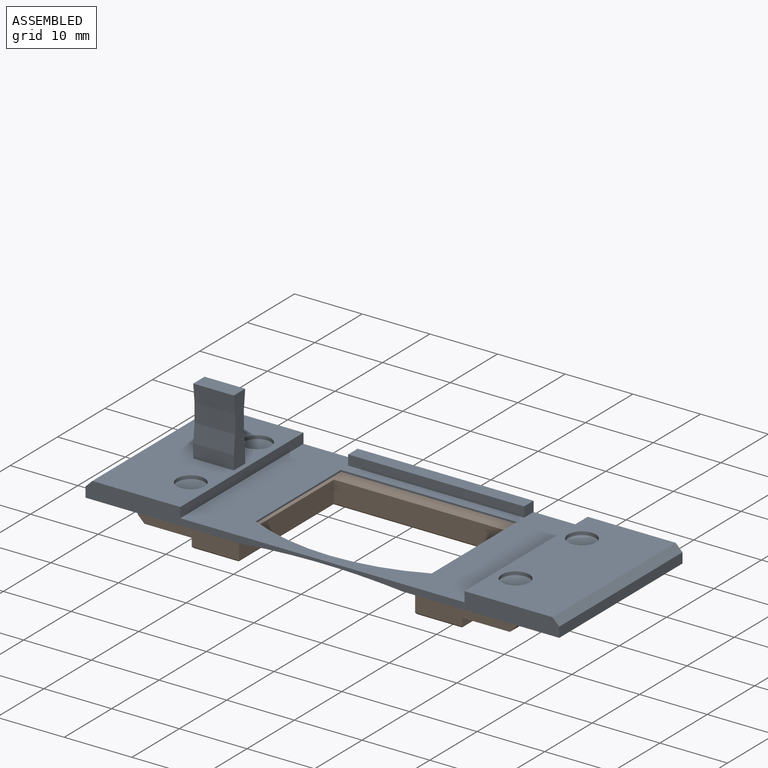
[diagram: assembled view]
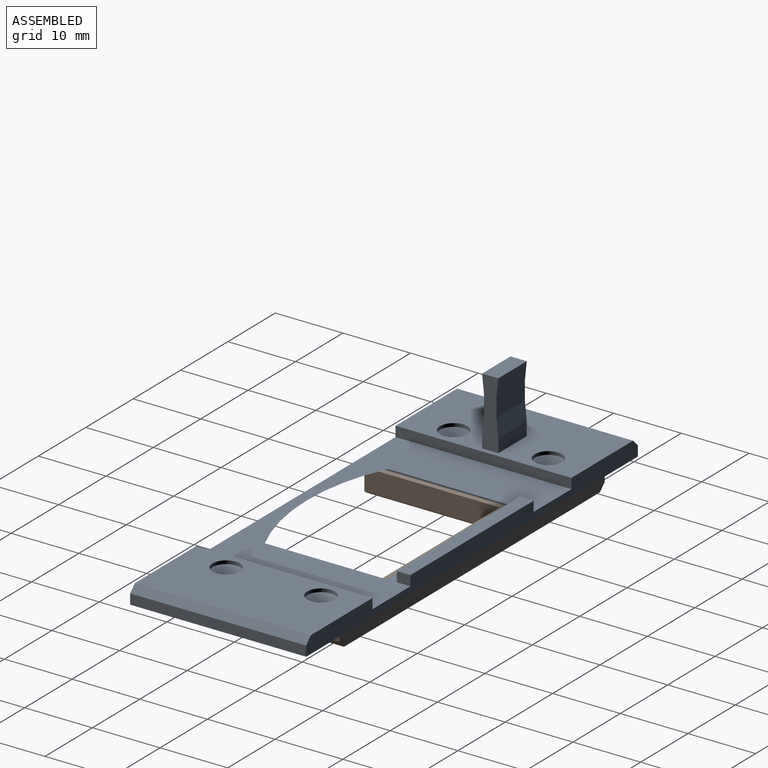
[diagram: assembled view, second angle]
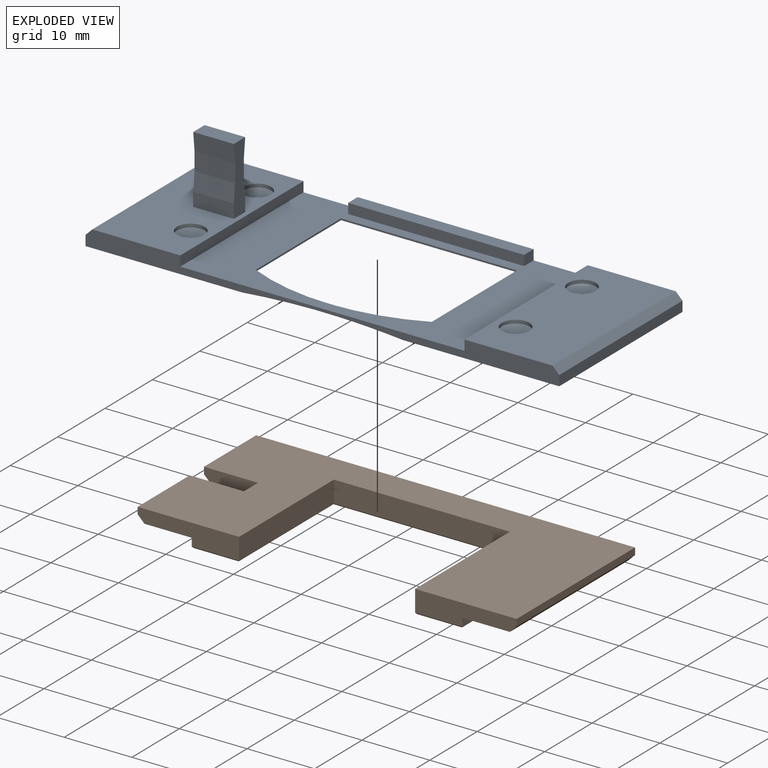
[diagram: exploded view]
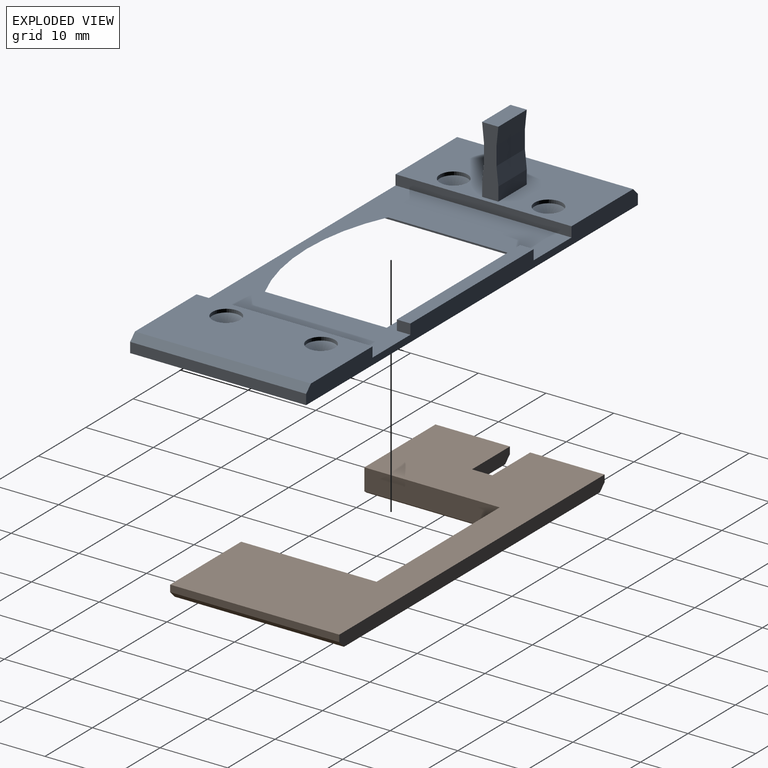
[diagram: exploded view, second angle]
ASSEMBLY  parts=2 mates=2
PART A: 38 faces, bbox 70x28.2x12.5 mm
  f0: plane 26x1.5mm, normal (0,-1,0), area 39mm2, adj f1,f15,f35,f36
  f1: plane 26x2mm, normal (0,0,1), area 52mm2, adj f0,f3,f35,f36
  f2: plane 26x13mm, normal (0,0,1), area 311.6mm2, adj f3,f8,f21,f23,f24,f34
  f3: plane 70x2.5mm, normal (0,1,0), area 150mm2, adj f1,f2,f4,f7,f8,f9,f10,f11
  f4: plane 70x26mm, normal (0,0,-1), area 1084.3mm2, adj f3,f9,f10,f31,f32,f33,f34,f37
  f5: plane 10x2.4mm, normal (1,0,0), area 20.7mm2, adj f11,f26,f27,f28,f29,f30
  f6: plane 10x2.4mm, normal (-1,0,0), area 20.7mm2, adj f11,f26,f27,f28,f29,f30
  f7: plane 26x1.5mm, normal (1,0,0), area 39mm2, adj f3,f11,f15,f34
  f8: plane 26x1.5mm, normal (-1,0,0), area 39mm2, adj f2,f3,f15,f34
  f9: plane 26x1.5mm, normal (1,0,0), area 39mm2, adj f3,f4,f24,f34
  f10: plane 26x1.5mm, normal (-1,0,0), area 39mm2, adj f3,f4,f25,f34
  f11: plane 26x13mm, normal (0,0,1), area 297.2mm2, adj f3,f5,f6,f7,f17,f19,f25,f26
  f12: plane 19.03x0.26mm, normal (-1,0,0), area 4.6mm2, adj f14,f15,f31,f37
  f13: plane 19.03x0.26mm, normal (1,0,0), area 4.6mm2, adj f14,f15,f32,f37
  f14: plane 26x0.25mm, normal (0,-1,0), area 6.5mm2, adj f12,f13,f15,f33
  f15: plane 42x26mm, normal (0,0,1), area 521.4mm2, adj f0,f3,f7,f8,f12,f13,f14,f34
  f16: cone r=0mm half-angle=59deg, axis (0,0,1), area 15.4mm2, adj f17
  f17: cylinder r=2.05mm len=4.1mm, axis (0,0,1), area 6.4mm2, adj f11,f16
  f18: cone r=0mm half-angle=59deg, axis (0,0,1), area 15.4mm2, adj f19
  f19: cylinder r=2.05mm len=4.1mm, axis (0,0,1), area 6.4mm2, adj f11,f18
  f20: cone r=0mm half-angle=59deg, axis (0,0,1), area 15.4mm2, adj f21
  f21: cylinder r=2.05mm len=4.1mm, axis (0,0,1), area 6.4mm2, adj f2,f20
  f22: cone r=0mm half-angle=59deg, axis (0,0,1), area 15.4mm2, adj f23
  f23: cylinder r=2.05mm len=4.1mm, axis (0,0,1), area 6.4mm2, adj f2,f22
  f24: plane 26x1mm, normal (0.71,0,0.71), area 36.8mm2, adj f2,f3,f9,f34
  f25: plane 26x1mm, normal (-0.71,0,0.71), area 36.8mm2, adj f3,f10,f11,f34
  f26: plane 6x2.02mm, normal (0,1,0), area 12.1mm2, adj f5,f6,f11,f30
  f27: plane 6x2.02mm, normal (0,-1,0), area 12.1mm2, adj f5,f6,f11,f29
  f28: plane 6x2.4mm, normal (0,0,1), area 14.4mm2, adj f5,f6,f29,f30
  f29: cylinder r=25.83mm len=7.98mm, axis (-1,0,0), area 48.1mm2, adj f5,f6,f27,f28
  f30: cylinder r=25.83mm len=7.98mm, axis (-1,0,0), area 48.1mm2, adj f5,f6,f26,f28
  f31: plane 23.25x2.1mm, normal (-0.34,0,-0.94), area 46.3mm2, adj f4,f12,f33,f37
  f32: plane 23.25x2.1mm, normal (0.34,0,-0.94), area 46.3mm2, adj f4,f13,f33,f37
  f33: plane 30.12x2.06mm, normal (0,-0.34,-0.94), area 61.5mm2, adj f4,f14,f31,f32
  f34: plane 70x2.5mm, normal (0,-1,0), area 102mm2, adj f2,f4,f7,f8,f9,f10,f11,f15
  f35: plane 2x1.5mm, normal (1,0,0), area 3mm2, adj f0,f1,f3,f15
  f36: plane 2x1.5mm, normal (-1,0,0), area 3mm2, adj f0,f1,f3,f15
  f37: cone r=30.7mm half-angle=75deg, axis (0,0,-1), area 74.8mm2, adj f4,f12,f13,f15,f31,f32,f34
PART B: 37 faces, bbox 56x25x3.4 mm
  f0: plane 11x1mm, normal (-1,0,0), area 11mm2, adj f2,f6,f8,f36
  f1: plane 54x25mm, normal (0,0,-1), area 332.4mm2, adj f2,f4,f6,f13,f15,f17,f18,f19
  f2: plane 11x1mm, normal (-0.71,0,-0.71), area 15.6mm2, adj f0,f1,f6,f36
  f3: plane 15x3.2mm, normal (0,-1,0), area 37.9mm2, adj f7,f8,f9,f20,f23,f25,f27
  f4: plane 15x3.2mm, normal (0,-1,0), area 37.9mm2, adj f1,f5,f8,f18,f22,f26,f34
  f5: plane 25x1mm, normal (1,0,0), area 25mm2, adj f4,f6,f8,f26
  f6: plane 56x2mm, normal (0,1,0), area 111mm2, adj f0,f1,f2,f5,f8,f26
  f7: plane 11x1mm, normal (-1,0,0), area 11mm2, adj f3,f8,f25,f35
  f8: plane 56x25mm, normal (0,0,1), area 856mm2, adj f0,f3,f4,f5,f6,f7,f20,f22
  f9: plane 11x7mm, normal (0,0,-1), area 63.8mm2, adj f3,f11,f20,f25,f35
  f10: cone r=0mm half-angle=59deg, axis (0,0,-1), area 15.4mm2, adj f11
  f11: cylinder r=2.05mm len=4.1mm, axis (0,0,-1), area 6.4mm2, adj f9,f10
  f12: cone r=0mm half-angle=59deg, axis (0,0,-1), area 15.4mm2, adj f13
  f13: cylinder r=2.05mm len=4.1mm, axis (0,0,-1), area 6.4mm2, adj f1,f12
  f14: cone r=0mm half-angle=59deg, axis (0,0,-1), area 15.4mm2, adj f15
  f15: cylinder r=2.05mm len=4.1mm, axis (0,0,-1), area 6.4mm2, adj f1,f14
  f16: cone r=0mm half-angle=59deg, axis (0,0,-1), area 15.4mm2, adj f17
  f17: cylinder r=2.05mm len=4.1mm, axis (0,0,-1), area 6.4mm2, adj f1,f16
  f18: plane 22x1.2mm, normal (1,0,0), area 26.4mm2, adj f1,f4,f19,f32
  f19: plane 40x1.2mm, normal (0,1,0), area 48mm2, adj f1,f18,f20,f30
  f20: plane 22x3.2mm, normal (-1,0,0), area 32.4mm2, adj f1,f3,f8,f9,f19,f28,f35,f36
  f21: plane 39.6x21.6mm, normal (0,0,-1), area 327.4mm2, adj f27,f28,f29,f30,f31,f32,f33,f34
  f22: plane 20x3.2mm, normal (-1,0,0), area 64mm2, adj f4,f8,f24,f33
  f23: plane 20x3.2mm, normal (1,0,0), area 64mm2, adj f3,f8,f24,f29
  f24: plane 26x3.2mm, normal (0,-1,0), area 83.2mm2, adj f8,f22,f23,f31
  f25: plane 11x1mm, normal (-0.71,0,-0.71), area 15.6mm2, adj f3,f7,f9,f35
  f26: plane 25x1mm, normal (0.71,0,-0.71), area 35.4mm2, adj f1,f4,f5,f6
  f27: plane 7x0.2mm, normal (0,-0.71,-0.71), area 1.9mm2, adj f3,f21,f28,f29
  f28: plane 22x0.2mm, normal (-0.71,0,-0.71), area 6.2mm2, adj f20,f21,f27,f30
  f29: plane 20.2x0.2mm, normal (0.71,0,-0.71), area 5.7mm2, adj f21,f23,f27,f31
  f30: plane 40x0.2mm, normal (0,0.71,-0.71), area 11.3mm2, adj f19,f21,f28,f32
  f31: plane 26.4x0.2mm, normal (0,-0.71,-0.71), area 7.4mm2, adj f21,f24,f29,f33
  f32: plane 22x0.2mm, normal (0.71,0,-0.71), area 6.2mm2, adj f18,f21,f30,f34
  f33: plane 20.2x0.2mm, normal (-0.71,0,-0.71), area 5.7mm2, adj f21,f22,f31,f34
  f34: plane 7x0.2mm, normal (0,-0.71,-0.71), area 1.9mm2, adj f4,f21,f32,f33
  f35: plane 8x2mm, normal (0,1,0), area 15.5mm2, adj f7,f8,f9,f20,f25
  f36: plane 8x2mm, normal (0,-1,0), area 15.5mm2, adj f0,f1,f2,f8,f20
PLACE A t=(7.7,16.98,20.22)mm
PLACE B t=(7.7,16.98,18.5)mm
MATE slider A.f16 <-> B.f12  axis (0,0,1) through (-16.3,23.98,22.72)mm
MATE slider A.f20 <-> B.f16  axis (0,0,1) through (31.7,9.98,22.72)mm
